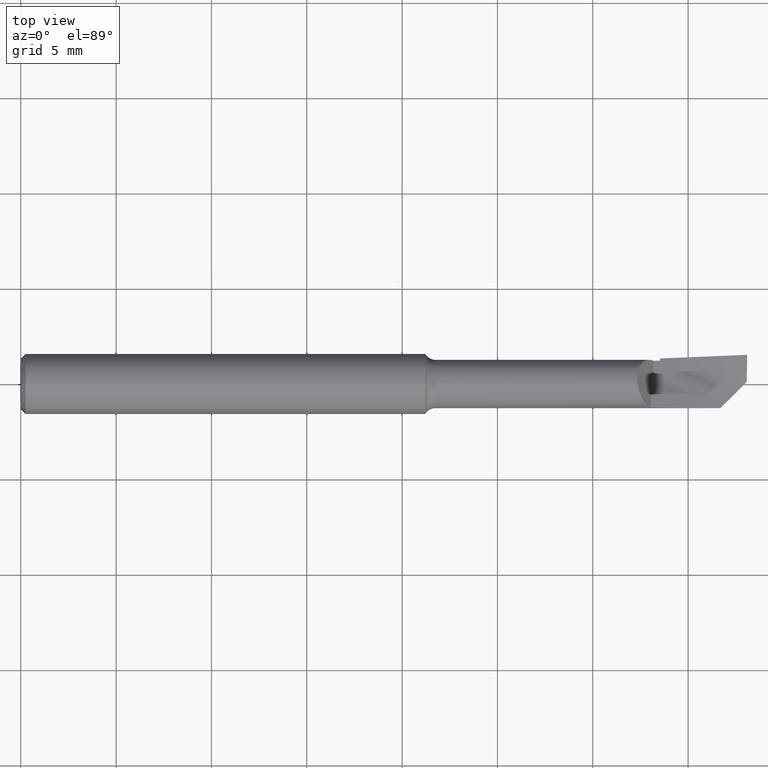
[diagram: clean part render]
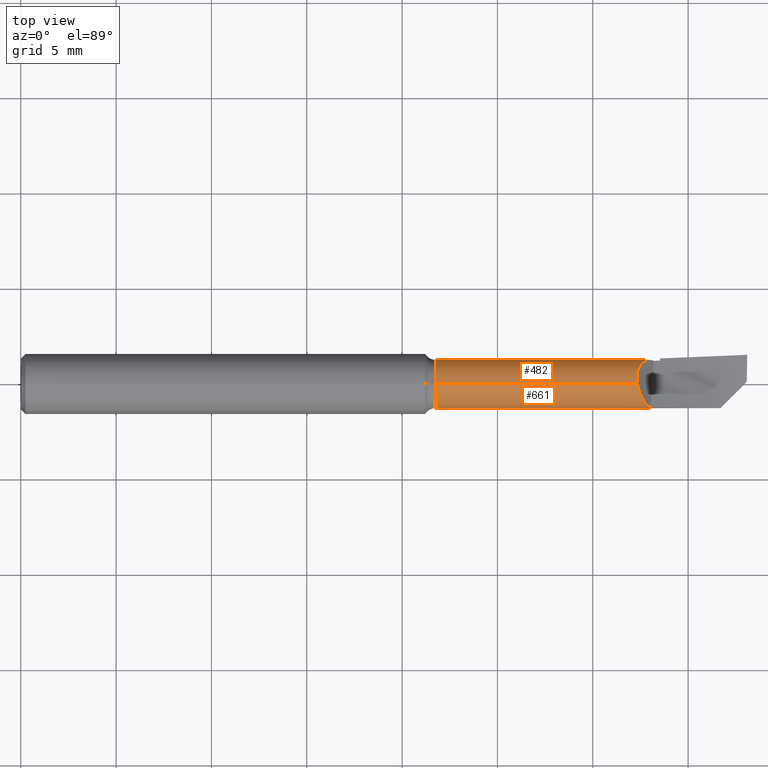
[diagram: same view with one multi-face feature highlighted, each face labeled with its STEP entity id]
A machine part, top view. The highlighted faces form ONE feature: a constant-radius fillet chain: 2 tangent blend faces with common blend radius 1.27 mm. The faces share edges in the B-rep.
Their STEP definitions:
[1] entity #482 (Cylinder):
#2 = CARTESIAN_POINT ( 'NONE',  ( 0.000000000000000000, 0.000000000000000000, 0.000000000000000000 ) ) ;
#7 = DIRECTION ( 'NONE',  ( -1.000000000000000000, -0.000000000000000000, -0.000000000000000000 ) ) ;
#8 = CIRCLE ( 'NONE', #309, 0.05000000000000000278 ) ;
#16 = FACE_OUTER_BOUND ( 'NONE', #445, .T. ) ;
#32 = CARTESIAN_POINT ( 'NONE',  ( 1.284317359456826457, 0.04468171013173798112, 0.02244703144825736449 ) ) ;
#34 = CARTESIAN_POINT ( 'NONE',  ( 1.272600000000000176, 0.01767793910073120478, 0.04677061544549996480 ) ) ;
#38 = ORIENTED_EDGE ( 'NONE', *, *, #456, .T. ) ;
#39 = EDGE_CURVE ( 'NONE', #63, #625, #685, .T. ) ;
#42 = B_SPLINE_CURVE_WITH_KNOTS ( 'NONE', 3,
 ( #34, #396, #600, #613, #123, #343, #287, #399, #505, #32, #177, #617, #360, #237, #248, #143, #242, #355, #564, #85, #562, #621, #90, #185, #673 ),
 .UNSPECIFIED., .F., .F.,
 ( 4, 2, 2, 2, 1, 1, 2, 2, 2, 2, 1, 2, 2, 4 ),
 ( 0.000000000000000000, 0.2500000000000081046, 0.3750000000000106026, 0.4375000000000100475, 0.4687500000000117129, 0.4843750000000125455, 0.4921875000000108247, 0.5000000000000091038, 0.6250000000000045519, 0.6875000000000049960, 0.7187500000000051070, 0.7343750000000074385, 0.7500000000000098810, 1.000000000000000000 ),
 .UNSPECIFIED. ) ;
#47 = DIRECTION ( 'NONE',  ( 0.000000000000000000, -8.881784197001252323E-16, -1.000000000000000000 ) ) ;
#58 = CARTESIAN_POINT ( 'NONE',  ( 1.272599999999999065, 0.01388379330715446350, 0.04766300404071218549 ) ) ;
#61 = CARTESIAN_POINT ( 'NONE',  ( 1.273051394249579804, 0.001872754368536154630, 0.04996990837720743234 ) ) ;
#62 = LINE ( 'NONE', #121, #261 ) ;
#63 = VERTEX_POINT ( 'NONE', #420 ) ;
#65 = LINE ( 'NONE', #656, #181 ) ;
#66 = VERTEX_POINT ( 'NONE', #640 ) ;
#68 = DIRECTION ( 'NONE',  ( -1.000000000000000000, -0.000000000000000000, -0.000000000000000000 ) ) ;
#69 = ORIENTED_EDGE ( 'NONE', *, *, #411, .T. ) ;
#71 = CARTESIAN_POINT ( 'NONE',  ( 1.320000000000000062, 0.000000000000000000, -0.04999999999999999584 ) ) ;
#83 = EDGE_CURVE ( 'NONE', #619, #63, #8, .T. ) ;
#85 = CARTESIAN_POINT ( 'NONE',  ( 1.294497396816033596, 0.04965823932066414093, 0.005851346421088930543 ) ) ;
#87 = VERTEX_POINT ( 'NONE', #205 ) ;
#90 = CARTESIAN_POINT ( 'NONE',  ( 1.299225894277451054, 0.05030653370678083575, -0.001594238758345357422 ) ) ;
#92 = CARTESIAN_POINT ( 'NONE',  ( 1.320000000000000062, 0.000000000000000000, 0.000000000000000000 ) ) ;
#96 = DIRECTION ( 'NONE',  ( -1.000000000000000000, -0.000000000000000000, -0.000000000000000000 ) ) ;
#97 = DIRECTION ( 'NONE',  ( -1.000000000000000000, -0.000000000000000000, -0.000000000000000000 ) ) ;
#98 = ORIENTED_EDGE ( 'NONE', *, *, #495, .F. ) ;
#100 = CARTESIAN_POINT ( 'NONE',  ( 1.272599999999999065, 0.01010214357083988497, 0.04860530849071728610 ) ) ;
#120 = CARTESIAN_POINT ( 'NONE',  ( 1.320000000000000062, 0.0002276509060372900926, -0.04999973990684460773 ) ) ;
#121 = CARTESIAN_POINT ( 'NONE',  ( 0.000000000000000000, 0.000000000000000000, 0.05000000000000000971 ) ) ;
#122 = VERTEX_POINT ( 'NONE', #689 ) ;
#123 = CARTESIAN_POINT ( 'NONE',  ( 1.278705978377491226, 0.03813056717829739484, 0.03251501850973271407 ) ) ;
#138 = ORIENTED_EDGE ( 'NONE', *, *, #83, .T. ) ;
#143 = CARTESIAN_POINT ( 'NONE',  ( 1.290553912426656069, 0.04852325606477719128, 0.01215098941398904710 ) ) ;
#149 = DIRECTION ( 'NONE',  ( 0.000000000000000000, 0.000000000000000000, 1.000000000000000000 ) ) ;
#152 = CARTESIAN_POINT ( 'NONE',  ( 1.273234840405434332, 0.0005353297154211454720, 0.04999785160134054274 ) ) ;
#154 =( BOUNDED_CURVE ( )  B_SPLINE_CURVE ( 2, ( #517, #193, #635 ),
 .UNSPECIFIED., .F., .F. ) 
 B_SPLINE_CURVE_WITH_KNOTS ( ( 3, 3 ),
 ( 0.6562066243744422156, 0.6799135259352183658 ),
 .UNSPECIFIED. ) 
 CURVE ( )  GEOMETRIC_REPRESENTATION_ITEM ( )  RATIONAL_B_SPLINE_CURVE ( ( 0.9832334983342112533, 0.9829660379099344203, 0.9827661798926232706 ) ) 
 REPRESENTATION_ITEM ( '' )  );
#156 = B_SPLINE_CURVE_WITH_KNOTS ( 'NONE', 3,
 ( #321, #58, #100, #650 ),
 .UNSPECIFIED., .F., .F.,
 ( 4, 4 ),
 ( 0.000000000000000000, 1.000000000000000000 ),
 .UNSPECIFIED. ) ;
#158 = ORIENTED_EDGE ( 'NONE', *, *, #184, .F. ) ;
#177 = CARTESIAN_POINT ( 'NONE',  ( 1.284658545911741223, 0.04496562735253333692, 0.02186638676765499320 ) ) ;
#181 = VECTOR ( 'NONE', #68, 39.37007874015748143 ) ;
#183 = ORIENTED_EDGE ( 'NONE', *, *, #39, .T. ) ;
#184 = EDGE_CURVE ( 'NONE', #222, #122, #62, .T. ) ;
#185 = CARTESIAN_POINT ( 'NONE',  ( 1.302908631925958849, 0.04978089754540802880, -0.007426383352256541587 ) ) ;
#193 = CARTESIAN_POINT ( 'NONE',  ( 1.313307016291270557, 0.04838941676514681156, -0.01259508402390933923 ) ) ;
#202 = EDGE_CURVE ( 'NONE', #665, #87, #65, .T. ) ;
#203 = AXIS2_PLACEMENT_3D ( 'NONE', #2, #96, #585 ) ;
#205 = CARTESIAN_POINT ( 'NONE',  ( 0.8565633369402790853, 6.123233995736767885E-18, -0.05000000000000000971 ) ) ;
#206 = CARTESIAN_POINT ( 'NONE',  ( 1.273310971566198546, -1.974737388771416636E-06, 0.05000498167796915694 ) ) ;
#222 = VERTEX_POINT ( 'NONE', #388 ) ;
#237 = CARTESIAN_POINT ( 'NONE',  ( 1.286419368290057541, 0.04635677041615348520, 0.01889200084040072378 ) ) ;
#242 = CARTESIAN_POINT ( 'NONE',  ( 1.291480237396792630, 0.04887668778972361489, 0.01065908677223262845 ) ) ;
#248 = CARTESIAN_POINT ( 'NONE',  ( 1.287940631087608034, 0.04732918689445155674, 0.01638779299897684741 ) ) ;
#261 = VECTOR ( 'NONE', #271, 39.37007874015748143 ) ;
#266 = CARTESIAN_POINT ( 'NONE',  ( 1.272678223989181845, 0.005301204891497752689, 0.04972910947857875352 ) ) ;
#271 = DIRECTION ( 'NONE',  ( -1.000000000000000000, -0.000000000000000000, -0.000000000000000000 ) ) ;
#278 = B_SPLINE_CURVE_WITH_KNOTS ( 'NONE', 3,
 ( #206, #366, #152, #376, #61, #316, #266, #588 ),
 .UNSPECIFIED., .F., .F.,
 ( 4, 2, 1, 1, 4 ),
 ( 0.9196539916576558227, 0.9296972427004485118, 0.9397404937432412009, 0.9598269958288278003, 1.000000000000000000 ),
 .UNSPECIFIED. ) ;
#286 = VERTEX_POINT ( 'NONE', #690 ) ;
#287 = CARTESIAN_POINT ( 'NONE',  ( 1.281657918288051201, 0.04205972624716268482, 0.02709001874779200236 ) ) ;
#293 = ORIENTED_EDGE ( 'NONE', *, *, #425, .F. ) ;
#296 = ORIENTED_EDGE ( 'NONE', *, *, #202, .T. ) ;
#309 = AXIS2_PLACEMENT_3D ( 'NONE', #633, #97, #518 ) ;
#310 = DIRECTION ( 'NONE',  ( -1.000000000000000000, -0.000000000000000000, -0.000000000000000000 ) ) ;
#316 = CARTESIAN_POINT ( 'NONE',  ( 1.272825370079349483, 0.003731400626201005714, 0.04988030266195780243 ) ) ;
#321 = CARTESIAN_POINT ( 'NONE',  ( 1.272600000000000176, 0.01767793910073120478, 0.04677061544549996480 ) ) ;
#324 = B_SPLINE_CURVE_WITH_KNOTS ( 'NONE', 3,
 ( #416, #560, #638, #514 ),
 .UNSPECIFIED., .F., .F.,
 ( 4, 4 ),
 ( 0.000000000000000000, 1.000000000000000000 ),
 .UNSPECIFIED. ) ;
#327 = EDGE_CURVE ( 'NONE', #625, #665, #324, .T. ) ;
#343 = CARTESIAN_POINT ( 'NONE',  ( 1.280881745406233341, 0.04112134373046005126, 0.02849257333601309602 ) ) ;
#355 = CARTESIAN_POINT ( 'NONE',  ( 1.292952571637677961, 0.04931186813868831259, 0.008305199919366250752 ) ) ;
#356 = AXIS2_PLACEMENT_3D ( 'NONE', #92, #310, #47 ) ;
#360 = CARTESIAN_POINT ( 'NONE',  ( 1.285037759127088508, 0.04527226005398709424, 0.02122369788388786538 ) ) ;
#366 = CARTESIAN_POINT ( 'NONE',  ( 1.273280173712074914, 0.0002228450762295597180, 0.05000000711950181725 ) ) ;
#376 = CARTESIAN_POINT ( 'NONE',  ( 1.273159908979330179, 0.001070956985645634199, 0.04998924678157073975 ) ) ;
#388 = CARTESIAN_POINT ( 'NONE',  ( 1.273310971566198546, -1.974737388771416636E-06, 0.05000498167796915694 ) ) ;
#396 = CARTESIAN_POINT ( 'NONE',  ( 1.273057942596790726, 0.02327651820205708585, 0.04465452380828396906 ) ) ;
#399 = CARTESIAN_POINT ( 'NONE',  ( 1.282898553419135501, 0.04336680805385209614, 0.02490065021552341495 ) ) ;
#411 = EDGE_CURVE ( 'NONE', #286, #619, #154, .T. ) ;
#416 = CARTESIAN_POINT ( 'NONE',  ( 1.320000000000000062, 0.0002276509060372900926, -0.04999973990684460773 ) ) ;
#420 = CARTESIAN_POINT ( 'NONE',  ( 1.320000000000000062, 0.04444631868266780972, -0.02290250544282729228 ) ) ;
#425 = EDGE_CURVE ( 'NONE', #122, #87, #504, .T. ) ;
#445 = EDGE_LOOP ( 'NONE', ( #675, #296, #293, #158, #38, #98, #510, #69, #138, #183 ) ) ;
#456 = EDGE_CURVE ( 'NONE', #222, #599, #278, .T. ) ;
#476 = CYLINDRICAL_SURFACE ( 'NONE', #203, 0.05000000000000000971 ) ;
#478 = CARTESIAN_POINT ( 'NONE',  ( 0.8565633369402790853, 0.000000000000000000, 0.000000000000000000 ) ) ;
#482 = ADVANCED_FACE ( 'NONE', ( #16 ), #476, .T. ) ;
#494 = CARTESIAN_POINT ( 'NONE',  ( 1.272600000000000176, 0.006335382065132504938, 0.04959700529355375032 ) ) ;
#495 = EDGE_CURVE ( 'NONE', #66, #599, #156, .T. ) ;
#498 = CARTESIAN_POINT ( 'NONE',  ( 1.319999999999999618, 0.04849049361772995309, -0.01219311398736564432 ) ) ;
#504 = CIRCLE ( 'NONE', #543, 0.05000000000000000971 ) ;
#505 = CARTESIAN_POINT ( 'NONE',  ( 1.283537964936766196, 0.04399522947068195550, 0.02378460945176720867 ) ) ;
#510 = ORIENTED_EDGE ( 'NONE', *, *, #682, .T. ) ;
#514 = CARTESIAN_POINT ( 'NONE',  ( 1.320000000000000062, 0.000000000000000000, -0.04999999999999999584 ) ) ;
#517 = CARTESIAN_POINT ( 'NONE',  ( 1.306620398593143495, 0.04828168986590251899, -0.01299532314691743094 ) ) ;
#518 = DIRECTION ( 'NONE',  ( 0.000000000000000000, 0.000000000000000000, 1.000000000000000000 ) ) ;
#543 = AXIS2_PLACEMENT_3D ( 'NONE', #478, #7, #149 ) ;
#560 = CARTESIAN_POINT ( 'NONE',  ( 1.320000000000000062, 0.0001517670114538102028, -0.04999982725050834687 ) ) ;
#562 = CARTESIAN_POINT ( 'NONE',  ( 1.295029598289169082, 0.04975014311094377861, 0.005010214347566171837 ) ) ;
#564 = CARTESIAN_POINT ( 'NONE',  ( 1.293709450454540999, 0.04950567770175370863, 0.007099316111280903376 ) ) ;
#585 = DIRECTION ( 'NONE',  ( 0.000000000000000000, 0.000000000000000000, 1.000000000000000000 ) ) ;
#588 = CARTESIAN_POINT ( 'NONE',  ( 1.272600000000000176, 0.006335382065132504938, 0.04959700529355375032 ) ) ;
#599 = VERTEX_POINT ( 'NONE', #494 ) ;
#600 = CARTESIAN_POINT ( 'NONE',  ( 1.274329614723504589, 0.02872114830333724958, 0.04143314897803466318 ) ) ;
#613 = CARTESIAN_POINT ( 'NONE',  ( 1.277459135847280880, 0.03590261947299348139, 0.03494859744685053365 ) ) ;
#617 = CARTESIAN_POINT ( 'NONE',  ( 1.284887594711026093, 0.04515258747261996497, 0.02147767114952116307 ) ) ;
#619 = VERTEX_POINT ( 'NONE', #498 ) ;
#621 = CARTESIAN_POINT ( 'NONE',  ( 1.295343796943831061, 0.04979705312359197084, 0.004514812852393763204 ) ) ;
#625 = VERTEX_POINT ( 'NONE', #120 ) ;
#633 = CARTESIAN_POINT ( 'NONE',  ( 1.320000000000000062, 0.000000000000000000, 0.000000000000000000 ) ) ;
#635 = CARTESIAN_POINT ( 'NONE',  ( 1.319999999999999618, 0.04849049361772995309, -0.01219311398736564432 ) ) ;
#638 = CARTESIAN_POINT ( 'NONE',  ( 1.320000000000000062, 7.588350572717989244E-05, -0.05000000000000000971 ) ) ;
#640 = CARTESIAN_POINT ( 'NONE',  ( 1.272600000000000176, 0.01767793910073120478, 0.04677061544549996480 ) ) ;
#650 = CARTESIAN_POINT ( 'NONE',  ( 1.272600000000000176, 0.006335382065132504938, 0.04959700529355375032 ) ) ;
#656 = CARTESIAN_POINT ( 'NONE',  ( 0.000000000000000000, 6.123233995736767885E-18, -0.05000000000000000971 ) ) ;
#665 = VERTEX_POINT ( 'NONE', #71 ) ;
#673 = CARTESIAN_POINT ( 'NONE',  ( 1.306620398593143495, 0.04828168986590251899, -0.01299532314691743094 ) ) ;
#675 = ORIENTED_EDGE ( 'NONE', *, *, #327, .T. ) ;
#682 = EDGE_CURVE ( 'NONE', #66, #286, #42, .T. ) ;
#685 = CIRCLE ( 'NONE', #356, 0.05000000000000000971 ) ;
#689 = CARTESIAN_POINT ( 'NONE',  ( 0.8565633369402790853, 0.000000000000000000, 0.05000000000000000971 ) ) ;
#690 = CARTESIAN_POINT ( 'NONE',  ( 1.306620398593143495, 0.04828168986590251899, -0.01299532314691743094 ) ) ;
[2] entity #661 (Cylinder):
#13 = DIRECTION ( 'NONE',  ( 0.000000000000000000, 0.000000000000000000, 1.000000000000000000 ) ) ;
#27 = CARTESIAN_POINT ( 'NONE',  ( 1.444042603293461458, -0.04994443645257963527, 0.002356537170136629739 ) ) ;
#37 = B_SPLINE_CURVE_WITH_KNOTS ( 'NONE', 3,
 ( #469, #254, #251, #104, #260, #377, #142, #684, #414, #201, #691, #589, #480, #423, #642, #586, #198 ),
 .UNSPECIFIED., .F., .F.,
 ( 4, 2, 2, 2, 2, 1, 2, 2, 4 ),
 ( 0.000000000000000000, 0.2299134979144048796, 0.4598269958288098147, 0.4885661830681104489, 0.5029357766877636804, 0.5173053703074169674, 0.5747837447860228988, 0.6897404937432349836, 0.9196539916576558227 ),
 .UNSPECIFIED. ) ;
#41 = CARTESIAN_POINT ( 'NONE',  ( 1.372134394488186082, -0.04973365691441448966, 0.006823797599040678542 ) ) ;
#50 = CARTESIAN_POINT ( 'NONE',  ( 1.493329537314193933, -0.0006575024318471743611, -0.04999567671861353951 ) ) ;
#53 = DIRECTION ( 'NONE',  ( 1.000000000000000000, -0.000000000000000000, -0.000000000000000000 ) ) ;
#55 = CARTESIAN_POINT ( 'NONE',  ( 1.493329537314193933, -0.0006575024318471743611, -0.04999567671861353951 ) ) ;
#56 = EDGE_CURVE ( 'NONE', #369, #222, #37, .T. ) ;
#62 = LINE ( 'NONE', #121, #261 ) ;
#65 = LINE ( 'NONE', #656, #181 ) ;
#68 = DIRECTION ( 'NONE',  ( -1.000000000000000000, -0.000000000000000000, -0.000000000000000000 ) ) ;
#70 =( BOUNDED_CURVE ( )  B_SPLINE_CURVE ( 3, ( #27, #455, #173, #161 ),
 .UNSPECIFIED., .F., .F. ) 
 B_SPLINE_CURVE_WITH_KNOTS ( ( 4, 4 ),
 ( 6.236037097670802609, 7.840831206315360902 ),
 .UNSPECIFIED. ) 
 CURVE ( )  GEOMETRIC_REPRESENTATION_ITEM ( )  RATIONAL_B_SPLINE_CURVE ( ( 1.000000000000000000, 0.7966567785890934505, 0.7966567785890934505, 1.000000000000000000 ) ) 
 REPRESENTATION_ITEM ( '' )  );
#71 = CARTESIAN_POINT ( 'NONE',  ( 1.320000000000000062, 0.000000000000000000, -0.04999999999999999584 ) ) ;
#87 = VERTEX_POINT ( 'NONE', #205 ) ;
#104 = CARTESIAN_POINT ( 'NONE',  ( 1.287652084224879978, -0.03785546354915629574, 0.03313858260128670075 ) ) ;
#114 = ORIENTED_EDGE ( 'NONE', *, *, #56, .T. ) ;
#115 = CARTESIAN_POINT ( 'NONE',  ( 0.000000000000000000, 0.000000000000000000, 0.000000000000000000 ) ) ;
#119 = ORIENTED_EDGE ( 'NONE', *, *, #163, .F. ) ;
#121 = CARTESIAN_POINT ( 'NONE',  ( 0.000000000000000000, 0.000000000000000000, 0.05000000000000000971 ) ) ;
#122 = VERTEX_POINT ( 'NONE', #689 ) ;
#142 = CARTESIAN_POINT ( 'NONE',  ( 1.283247182530694586, -0.03046780381315742151, 0.03964770486486433182 ) ) ;
#147 = ORIENTED_EDGE ( 'NONE', *, *, #379, .T. ) ;
#157 = CARTESIAN_POINT ( 'NONE',  ( 1.493332831684060169, -0.0002191753736062268488, -0.05000000000000000971 ) ) ;
#161 = CARTESIAN_POINT ( 'NONE',  ( 1.493329537314193933, -0.0006575024318471743611, -0.04999567671861353951 ) ) ;
#163 = EDGE_CURVE ( 'NONE', #545, #176, #499, .T. ) ;
#164 = ORIENTED_EDGE ( 'NONE', *, *, #540, .F. ) ;
#170 = AXIS2_PLACEMENT_3D ( 'NONE', #524, #534, #13 ) ;
#173 = CARTESIAN_POINT ( 'NONE',  ( 1.463247076013919346, -0.03073996373212161889, -0.04960005668186116823 ) ) ;
#176 = VERTEX_POINT ( 'NONE', #593 ) ;
#181 = VECTOR ( 'NONE', #68, 39.37007874015748143 ) ;
#184 = EDGE_CURVE ( 'NONE', #222, #122, #62, .T. ) ;
#198 = CARTESIAN_POINT ( 'NONE',  ( 1.273310971566198546, -1.974737388771416636E-06, 0.05000498167796915694 ) ) ;
#201 = CARTESIAN_POINT ( 'NONE',  ( 1.282536405550774194, -0.02911040957615007238, 0.04065397835226913087 ) ) ;
#202 = EDGE_CURVE ( 'NONE', #665, #87, #65, .T. ) ;
#204 = CARTESIAN_POINT ( 'NONE',  ( 1.320000000000000062, 0.000000000000000000, -0.04999999999999999584 ) ) ;
#205 = CARTESIAN_POINT ( 'NONE',  ( 0.8565633369402790853, 6.123233995736767885E-18, -0.05000000000000000971 ) ) ;
#222 = VERTEX_POINT ( 'NONE', #388 ) ;
#225 = CARTESIAN_POINT ( 'NONE',  ( 1.493334744398568503, 0.000000000000000000, -0.04999999999999999584 ) ) ;
#233 = CARTESIAN_POINT ( 'NONE',  ( 1.444042603293461458, -0.04994443645257963527, 0.002356537170136629739 ) ) ;
#238 = VECTOR ( 'NONE', #53, 39.37007874015748143 ) ;
#251 = CARTESIAN_POINT ( 'NONE',  ( 1.293119828095759649, -0.04423520646848196070, 0.02396765082427926991 ) ) ;
#254 = CARTESIAN_POINT ( 'NONE',  ( 1.296350428254645637, -0.04713417480804065612, 0.01815536555169242755 ) ) ;
#260 = CARTESIAN_POINT ( 'NONE',  ( 1.285414940512887405, -0.03437899939979030539, 0.03652654147791739581 ) ) ;
#261 = VECTOR ( 'NONE', #271, 39.37007874015748143 ) ;
#271 = DIRECTION ( 'NONE',  ( -1.000000000000000000, -0.000000000000000000, -0.000000000000000000 ) ) ;
#280 =( BOUNDED_CURVE ( )  B_SPLINE_CURVE ( 2, ( #233, #41, #457 ),
 .UNSPECIFIED., .F., .F. ) 
 B_SPLINE_CURVE_WITH_KNOTS ( ( 3, 3 ),
 ( 0.1003933037384417970, 0.3554884400978503001 ),
 .UNSPECIFIED. ) 
 CURVE ( )  GEOMETRIC_REPRESENTATION_ITEM ( )  RATIONAL_B_SPLINE_CURVE ( ( 0.9848675701160670704, 0.9802770089604164738, 0.9835138369071867448 ) ) 
 REPRESENTATION_ITEM ( '' )  );
#335 = DIRECTION ( 'NONE',  ( -1.000000000000000000, -0.000000000000000000, -0.000000000000000000 ) ) ;
#369 = VERTEX_POINT ( 'NONE', #397 ) ;
#377 = CARTESIAN_POINT ( 'NONE',  ( 1.283456973088272557, -0.03085452901153499031, 0.03934780377419332120 ) ) ;
#379 = EDGE_CURVE ( 'NONE', #398, #369, #280, .T. ) ;
#388 = CARTESIAN_POINT ( 'NONE',  ( 1.273310971566198546, -1.974737388771416636E-06, 0.05000498167796915694 ) ) ;
#392 = CIRCLE ( 'NONE', #170, 0.05000000000000000971 ) ;
#397 = CARTESIAN_POINT ( 'NONE',  ( 1.300027689044524370, -0.04873342121103083069, 0.01118273924708299005 ) ) ;
#398 = VERTEX_POINT ( 'NONE', #671 ) ;
#402 = EDGE_LOOP ( 'NONE', ( #539, #622, #119, #509, #147, #114, #454, #164 ) ) ;
#414 = CARTESIAN_POINT ( 'NONE',  ( 1.282872496885824498, -0.02976091456422653644, 0.04018021734459368416 ) ) ;
#423 = CARTESIAN_POINT ( 'NONE',  ( 1.278114738107505088, -0.01896353775922247561, 0.04635682165650405889 ) ) ;
#429 = EDGE_CURVE ( 'NONE', #665, #176, #646, .T. ) ;
#450 = AXIS2_PLACEMENT_3D ( 'NONE', #115, #335, #546 ) ;
#454 = ORIENTED_EDGE ( 'NONE', *, *, #184, .T. ) ;
#455 = CARTESIAN_POINT ( 'NONE',  ( 1.442624671926669544, -0.05136236781937122964, -0.02769509279788769443 ) ) ;
#457 = CARTESIAN_POINT ( 'NONE',  ( 1.300027689044524370, -0.04873342121103083069, 0.01118273924708299005 ) ) ;
#469 = CARTESIAN_POINT ( 'NONE',  ( 1.300027689044524370, -0.04873342121103083069, 0.01118273924708299005 ) ) ;
#480 = CARTESIAN_POINT ( 'NONE',  ( 1.279160651367846846, -0.02173600711624858531, 0.04513533808214464232 ) ) ;
#499 =( BOUNDED_CURVE ( )  B_SPLINE_CURVE ( 3, ( #55, #538, #157, #225 ),
 .UNSPECIFIED., .F., .F. ) 
 B_SPLINE_CURVE_WITH_KNOTS ( ( 4, 4 ),
 ( 0.05780219530531230387, 0.07095262296443505257 ),
 .UNSPECIFIED. ) 
 CURVE ( )  GEOMETRIC_REPRESENTATION_ITEM ( )  RATIONAL_B_SPLINE_CURVE ( ( 1.000000000000000000, 0.9999855889062854164, 0.9999855889062854164, 1.000000000000000000 ) ) 
 REPRESENTATION_ITEM ( '' )  );
#509 = ORIENTED_EDGE ( 'NONE', *, *, #674, .F. ) ;
#524 = CARTESIAN_POINT ( 'NONE',  ( 0.8565633369402790853, 0.000000000000000000, 0.000000000000000000 ) ) ;
#534 = DIRECTION ( 'NONE',  ( -1.000000000000000000, -0.000000000000000000, -0.000000000000000000 ) ) ;
#538 = CARTESIAN_POINT ( 'NONE',  ( 1.493331095964254951, -0.0004383460093771939479, -0.04999855888543649346 ) ) ;
#539 = ORIENTED_EDGE ( 'NONE', *, *, #202, .F. ) ;
#540 = EDGE_CURVE ( 'NONE', #87, #122, #392, .T. ) ;
#545 = VERTEX_POINT ( 'NONE', #50 ) ;
#546 = DIRECTION ( 'NONE',  ( 0.000000000000000000, 0.000000000000000000, 1.000000000000000000 ) ) ;
#586 = CARTESIAN_POINT ( 'NONE',  ( 1.274078980125237459, -0.005139474870876601514, 0.04999983641262403800 ) ) ;
#589 = CARTESIAN_POINT ( 'NONE',  ( 1.280928489311599083, -0.02580133550231149611, 0.04285678795224784343 ) ) ;
#593 = CARTESIAN_POINT ( 'NONE',  ( 1.493334744398568503, 0.000000000000000000, -0.04999999999999999584 ) ) ;
#605 = CYLINDRICAL_SURFACE ( 'NONE', #450, 0.05000000000000000971 ) ;
#622 = ORIENTED_EDGE ( 'NONE', *, *, #429, .T. ) ;
#642 = CARTESIAN_POINT ( 'NONE',  ( 1.275374934432960350, -0.01065421164159872751, 0.04920132608019361919 ) ) ;
#646 = LINE ( 'NONE', #204, #238 ) ;
#656 = CARTESIAN_POINT ( 'NONE',  ( 0.000000000000000000, 6.123233995736767885E-18, -0.05000000000000000971 ) ) ;
#661 = ADVANCED_FACE ( 'NONE', ( #666 ), #605, .T. ) ;
#665 = VERTEX_POINT ( 'NONE', #71 ) ;
#666 = FACE_OUTER_BOUND ( 'NONE', #402, .T. ) ;
#671 = CARTESIAN_POINT ( 'NONE',  ( 1.444042603293461458, -0.04994443645257963527, 0.002356537170136629739 ) ) ;
#674 = EDGE_CURVE ( 'NONE', #398, #545, #70, .T. ) ;
#684 = CARTESIAN_POINT ( 'NONE',  ( 1.282944138762066588, -0.02989628561582072935, 0.04007828587825806865 ) ) ;
#689 = CARTESIAN_POINT ( 'NONE',  ( 0.8565633369402790853, 0.000000000000000000, 0.05000000000000000971 ) ) ;
#691 = CARTESIAN_POINT ( 'NONE',  ( 1.281706540132587557, -0.02747549845319133613, 0.04181464526053497305 ) ) ;